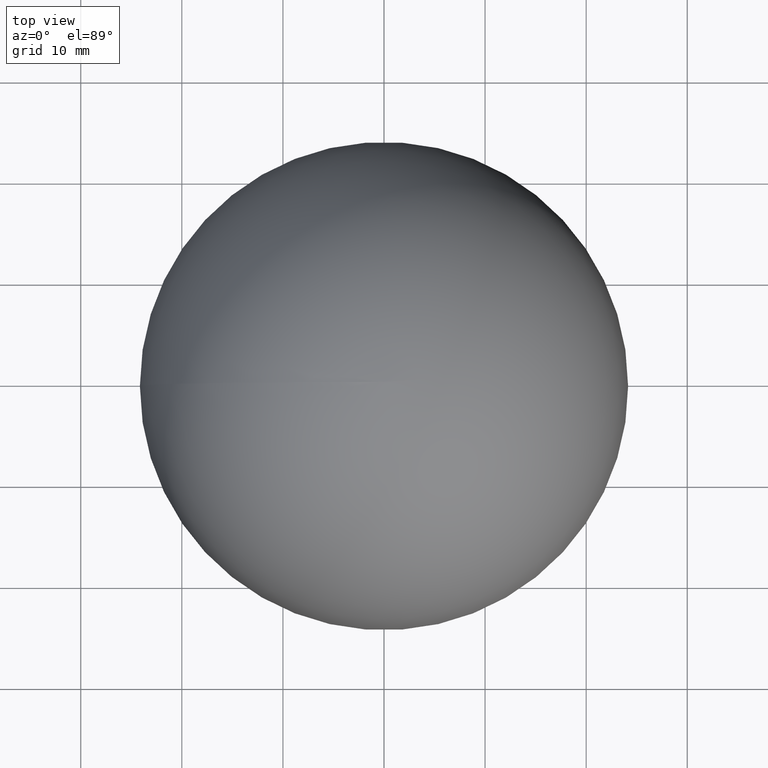
[diagram: clean part render]
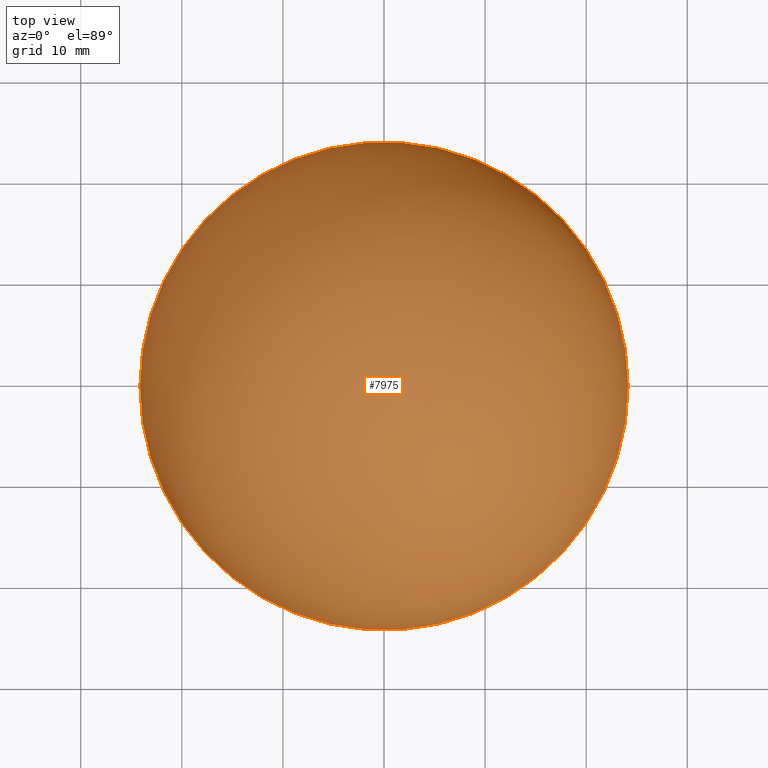
[diagram: same view with one face highlighted and labeled with its STEP entity id]
A machine part, top view. The second image highlights one B-rep face of the part: STEP entity #7975.
In plain terms, the highlighted spherical surface has radius 24.15 mm.
Its self-contained STEP definition (entity closure, byte-faithful):
#128 = CIRCLE ( 'NONE', #7952, 24.15000000000000213 ) ;
#330 = DIRECTION ( 'NONE',  ( -1.000000000000000000, 0.000000000000000000, -6.982962677686266711E-15 ) ) ;
#716 = DIRECTION ( 'NONE',  ( -1.000000000000000000, 0.000000000000000000, -6.982962677686266711E-15 ) ) ;
#797 = EDGE_CURVE ( 'NONE', #1506, #1194, #6915, .T. ) ;
#1056 = SPHERICAL_SURFACE ( 'NONE', #1910, 24.15000000000000213 ) ;
#1087 = DIRECTION ( 'NONE',  ( 6.982962677686266711E-15, 0.000000000000000000, -1.000000000000000000 ) ) ;
#1194 = VERTEX_POINT ( 'NONE', #5773 ) ;
#1334 = AXIS2_PLACEMENT_3D ( 'NONE', #3647, #7563, #2736 ) ;
#1506 = VERTEX_POINT ( 'NONE', #3639 ) ;
#1910 = AXIS2_PLACEMENT_3D ( 'NONE', #4049, #2344, #716 ) ;
#2344 = DIRECTION ( 'NONE',  ( -6.982962677686266711E-15, 0.000000000000000000, 1.000000000000000000 ) ) ;
#2558 = EDGE_CURVE ( 'NONE', #1194, #1506, #128, .T. ) ;
#2736 = DIRECTION ( 'NONE',  ( -1.000000000000000000, 0.000000000000000000, -6.982962677686266711E-15 ) ) ;
#2883 = ORIENTED_EDGE ( 'NONE', *, *, #2558, .F. ) ;
#3505 = CARTESIAN_POINT ( 'NONE',  ( 0.000000000000000000, 0.000000000000000000, 0.000000000000000000 ) ) ;
#3639 = CARTESIAN_POINT ( 'NONE',  ( -24.15000000000000213, 0.000000000000000000, -1.686385486661233474E-13 ) ) ;
#3647 = CARTESIAN_POINT ( 'NONE',  ( 0.000000000000000000, 0.000000000000000000, 0.000000000000000000 ) ) ;
#4049 = CARTESIAN_POINT ( 'NONE',  ( 0.000000000000000000, 0.000000000000000000, 0.000000000000000000 ) ) ;
#5371 = EDGE_LOOP ( 'NONE', ( #6823, #2883 ) ) ;
#5773 = CARTESIAN_POINT ( 'NONE',  ( 24.15000000000000213, 2.957522019940858324E-15, 1.686385486661233474E-13 ) ) ;
#6823 = ORIENTED_EDGE ( 'NONE', *, *, #797, .F. ) ;
#6915 = CIRCLE ( 'NONE', #1334, 24.15000000000000213 ) ;
#7563 = DIRECTION ( 'NONE',  ( 6.982962677686266711E-15, 0.000000000000000000, -1.000000000000000000 ) ) ;
#7952 = AXIS2_PLACEMENT_3D ( 'NONE', #3505, #1087, #330 ) ;
#7975 = ADVANCED_FACE ( 'NONE', ( #9993 ), #1056, .T. ) ;
#9993 = FACE_OUTER_BOUND ( 'NONE', #5371, .T. ) ;